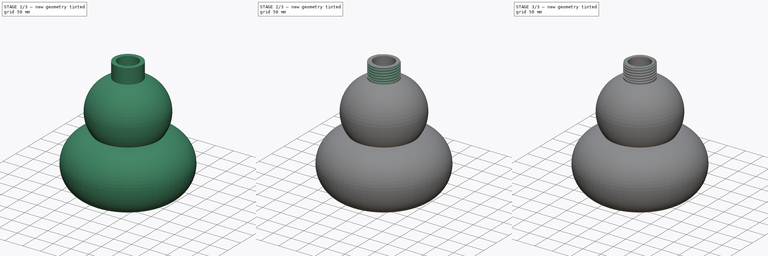
[diagram: build sequence overview — one tinted view per stage of 3, left to right]
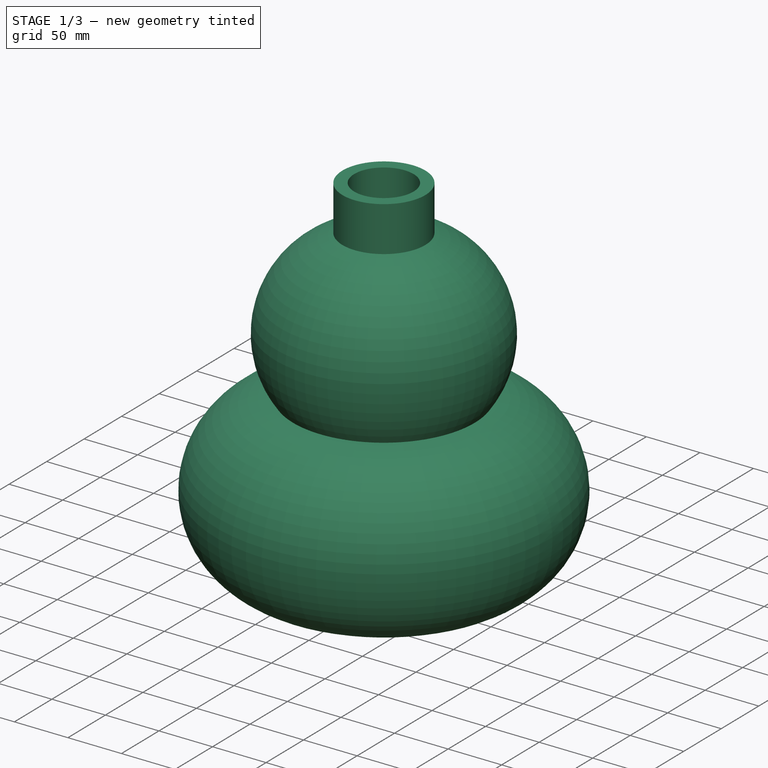
[diagram: stage 1 of 3 — iso view after this stage's code; geometry added in this stage tinted green]
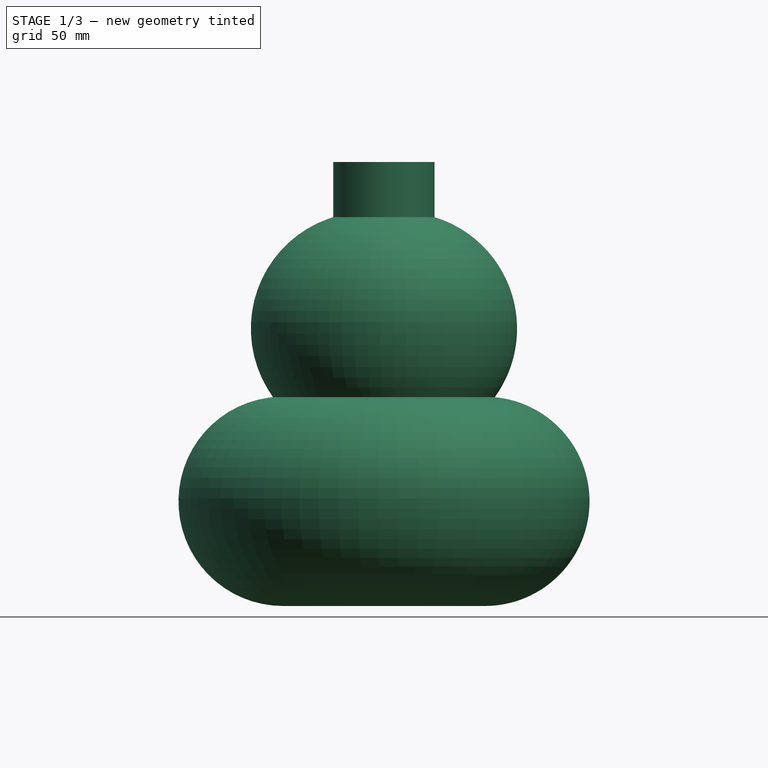
[diagram: stage 1 of 3 — front view after this stage's code; geometry added in this stage tinted green]
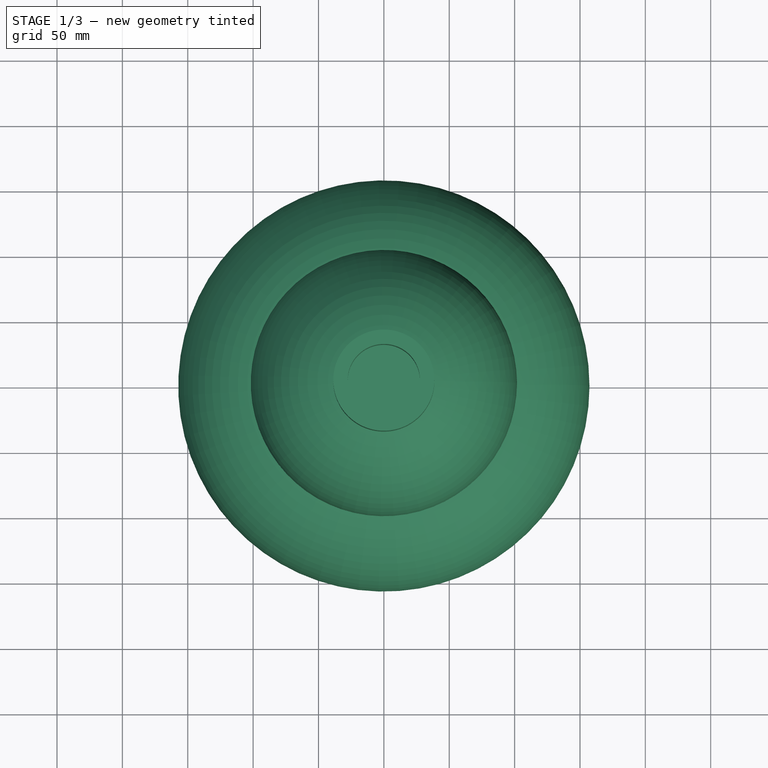
[diagram: stage 1 of 3 — top view after this stage's code; geometry added in this stage tinted green]
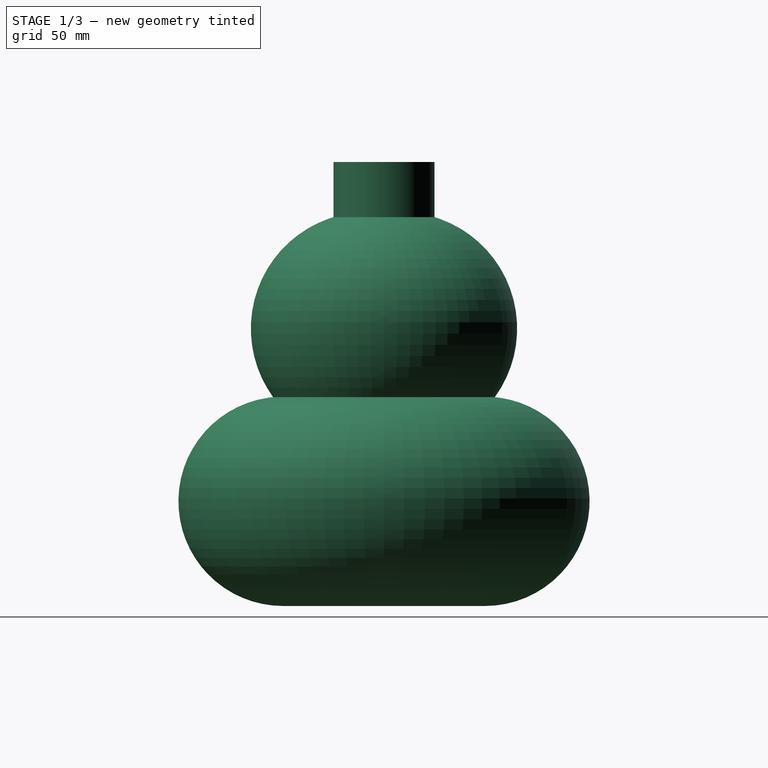
[diagram: stage 1 of 3 — right view after this stage's code; geometry added in this stage tinted green]
FCSTD DOCUMENT  (FreeCAD 0.21R33771 (Git))
Label: butilka
License: All rights reserved
LicenseURL: http://en.wikipedia.org/wiki/All_rights_reserved
objects: Sketcher::SketchObject×4, PartDesign::Fillet×2, PartDesign::Groove×2, PartDesign::Revolution×1, PartDesign::Thickness×1, PartDesign::SubtractiveHelix×1, PartDesign::Body×1
note: 19 computed .brp shape members not serialized (recipe doc carries the construction recipe); baked Part::Feature solids carry a one-line shape summary decoded from their .brp

FEATURE [Sketcher::SketchObject] Sketch
  FullyConstrained = false
  MapMode = 5
  Placement = pos=(0,0,0) rot=(1,0,0;1.5708rad)
  Support = -> [XZ_Plane]
  sketch-geometry (6):
    g0: LineSegment StartX=77.3145 StartY=-177.97 StartZ=0 EndX=0 EndY=-177.97 EndZ=0
    g1: ArcOfCircle CenterX=12.7362 CenterY=34.1959 CenterZ=0 NormalX=0 NormalY=0 NormalZ=1 AngleXU=0 Radius=89.1427 StartAngle=5.65463 EndAngle=7.55859
    g2: ArcOfCircle CenterX=77.2478 CenterY=-97.9134 CenterZ=0 NormalX=0 NormalY=0 NormalZ=1 AngleXU=0 Radius=80.0565 StartAngle=4.71322 EndAngle=7.75898
    g3: LineSegment StartX=38.6868 StartY=119.478 StartZ=0 EndX=38.6868 EndY=161.62 EndZ=0
    g4: LineSegment StartX=38.6868 StartY=161.62 StartZ=0 EndX=0 EndY=161.62 EndZ=0
    g5: LineSegment StartX=0 StartY=161.62 StartZ=0 EndX=0 EndY=-177.97 EndZ=0
  constraints (11):
    c: PointOnObject(g0,g-2)
    c: Horizontal(g0)
    c: Coincident(g2,g1)
    c: Vertical(g3)
    c: Coincident(g1,g3)
    c: Coincident(g4,g3)
    c: Horizontal(g4)
    c: Coincident(g2,g0)
    c: Coincident(g5,g4)
    c: Coincident(g5,g0)
    c: Vertical(g5)
FEATURE [PartDesign::Revolution] Revolution
  Angle = 360
  Axis = (0,2e-16,1)
  Base = (0,0,0)
  Placement = pos=(0,0,0) rot=(1,0,0;1.5708rad)
  Profile = -> Sketch
  ReferenceAxis = -> Sketch [V_Axis]
  Refine = true
  Reversed = true
FEATURE [PartDesign::Thickness] Thickness
  Base = -> Revolution [Face3]
  BaseFeature = -> Revolution
  Intersection = false
  Join = 0
  Mode = 0
  Refine = true
  Reversed = true
  SupportTransform = false
  Value = 11
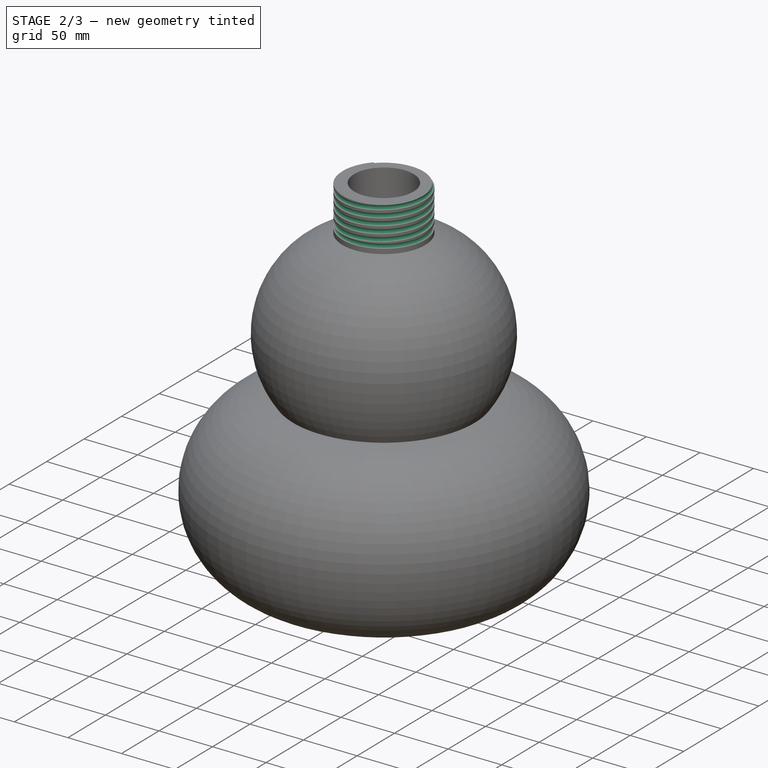
[diagram: stage 2 of 3 — iso view after this stage's code; geometry added in this stage tinted green]
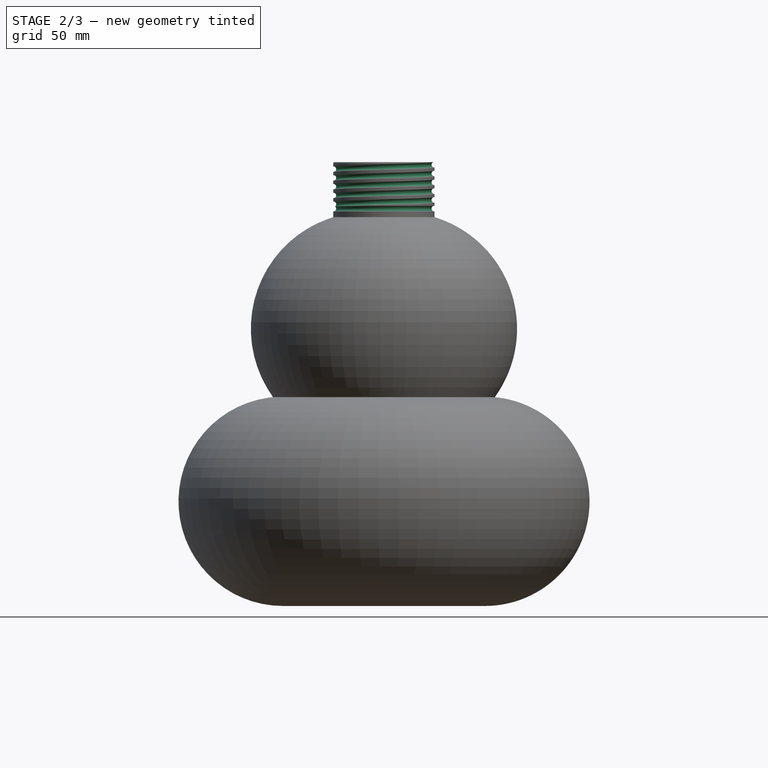
[diagram: stage 2 of 3 — front view after this stage's code; geometry added in this stage tinted green]
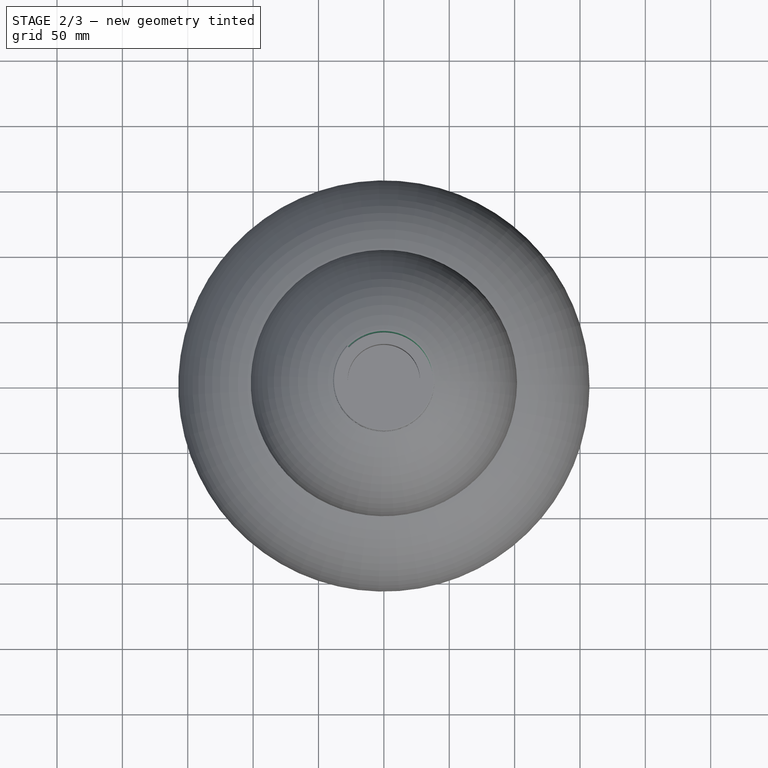
[diagram: stage 2 of 3 — top view after this stage's code; geometry added in this stage tinted green]
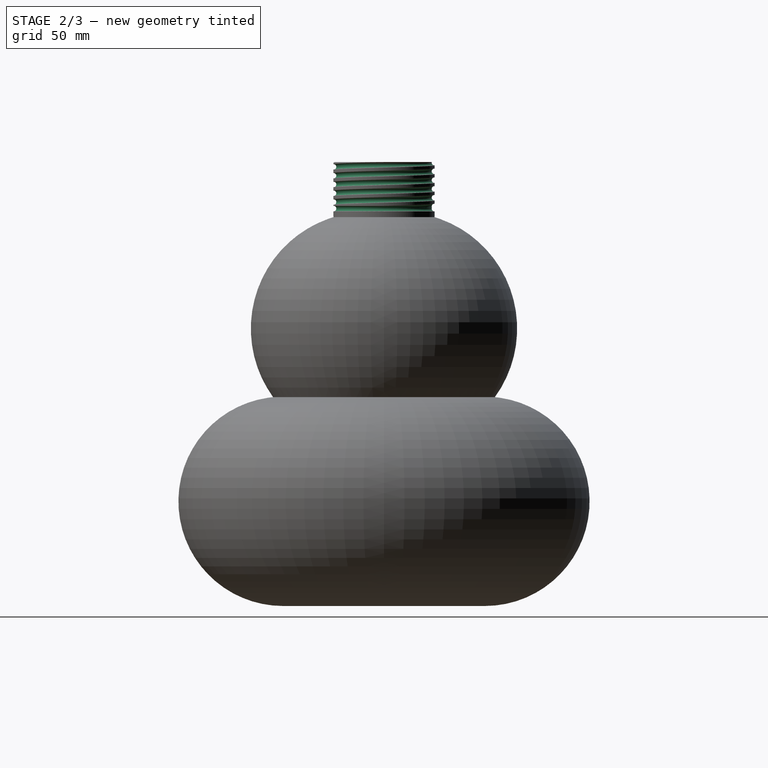
[diagram: stage 2 of 3 — right view after this stage's code; geometry added in this stage tinted green]
FEATURE [Sketcher::SketchObject] Sketch001
  FullyConstrained = false
  MapMode = 5
  Placement = pos=(0,0,0) rot=(1,0,0;1.5708rad)
  Support = -> [XZ_Plane]
  sketch-geometry (1):
    g0: Circle CenterX=38.6429 CenterY=125.959 CenterZ=0 NormalX=0 NormalY=0 NormalZ=1 AngleXU=0 Radius=2.16027
FEATURE [PartDesign::SubtractiveHelix] SubtractiveHelix
  Angle = 0
  Axis = (0,2e-16,1)
  Base = (0,0,0)
  BaseFeature = -> Thickness
  Growth = 0
  HasBeenEdited = true
  Height = 36.16
  LeftHanded = false
  Mode = 0
  Outside = false
  Pitch = 6.72119
  Profile = -> Sketch001
  ReferenceAxis = -> Sketch001 [V_Axis]
  Refine = true
  Turns = 5.38
FEATURE [PartDesign::Fillet] Fillet
  Base = -> SubtractiveHelix [Edge15]
  BaseFeature = -> SubtractiveHelix
  Radius = 1
  Refine = true
  SupportTransform = false
  UseAllEdges = false
FEATURE [Sketcher::SketchObject] Sketch002
  FullyConstrained = false
  MapMode = 5
  Placement = pos=(0,-1.24e-14,0) rot=(0,0.707107,0.707107;3.14159rad)
  Support = -> [Fillet]
  sketch-geometry (1):
    g0: Circle CenterX=-38.6097 CenterY=125.982 CenterZ=0 NormalX=0 NormalY=0 NormalZ=1 AngleXU=0 Radius=2.11722
FEATURE [PartDesign::Groove] Groove
  Angle = 360
  Axis = (1e-16,1e-16,1)
  Base = (0,0,0)
  BaseFeature = -> Fillet
  Profile = -> Sketch002
  ReferenceAxis = -> Z_Axis
  Refine = true
  Reversed = true
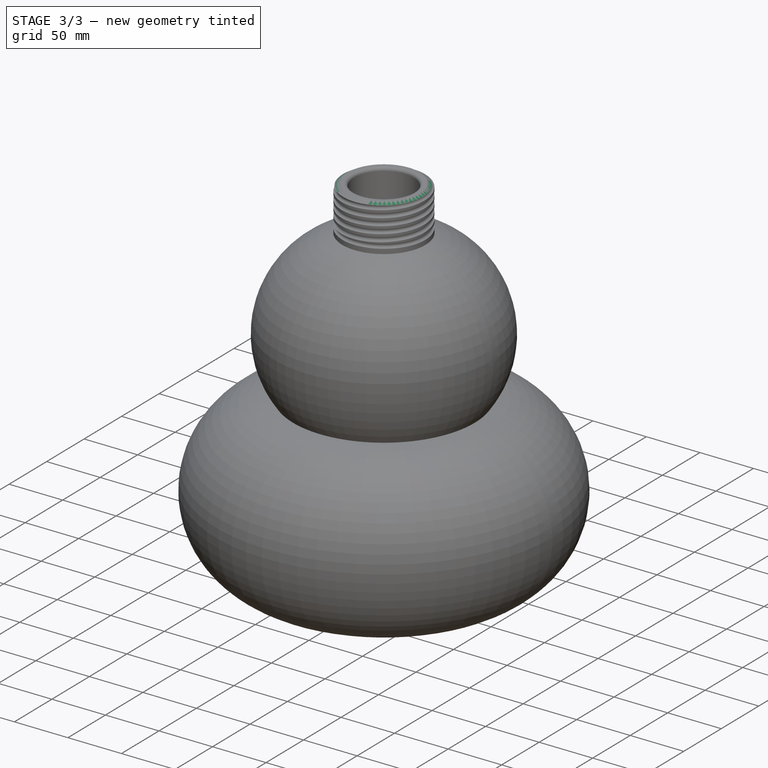
[diagram: stage 3 of 3 — iso view after this stage's code; geometry added in this stage tinted green]
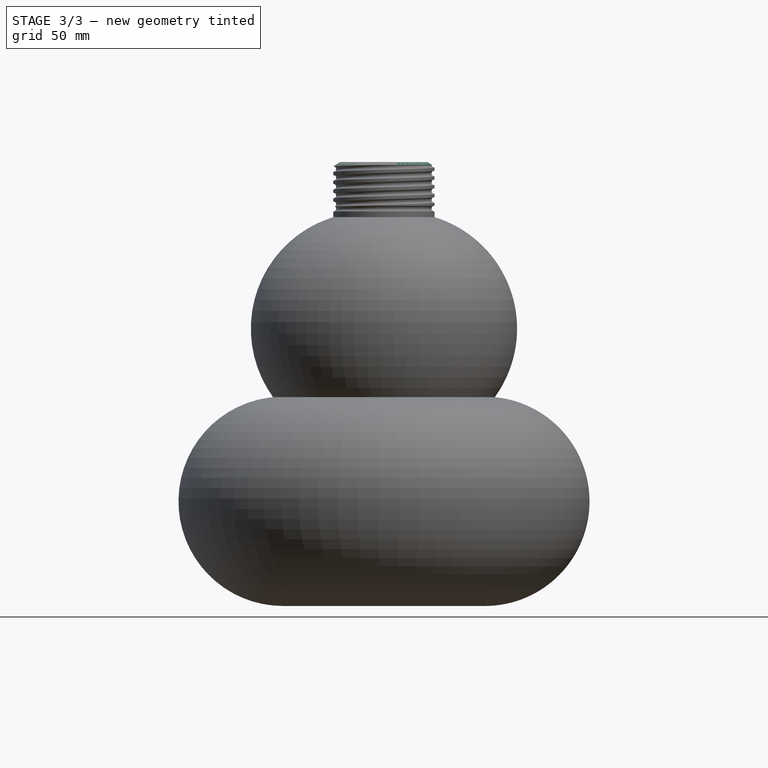
[diagram: stage 3 of 3 — front view after this stage's code; geometry added in this stage tinted green]
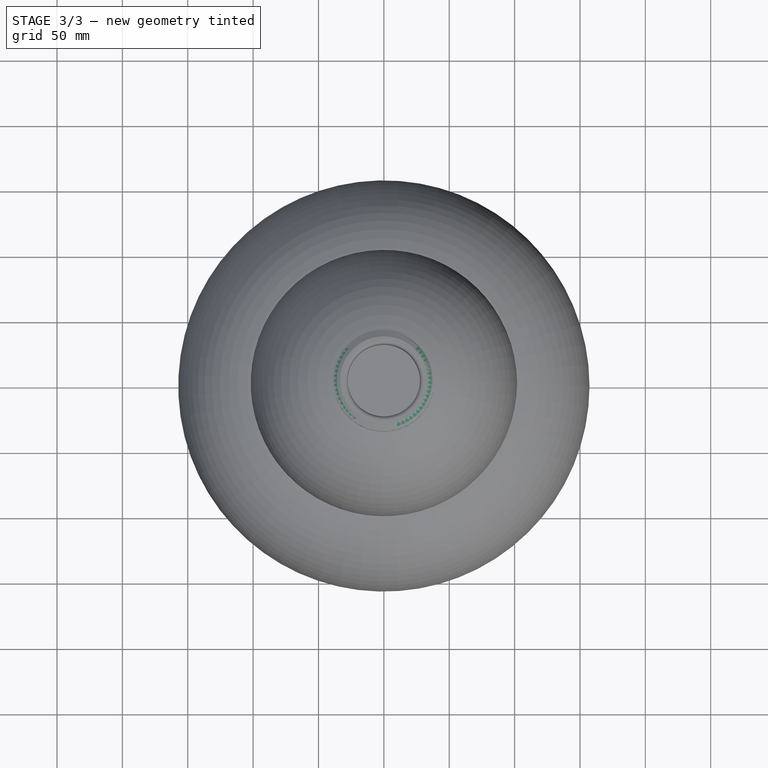
[diagram: stage 3 of 3 — top view after this stage's code; geometry added in this stage tinted green]
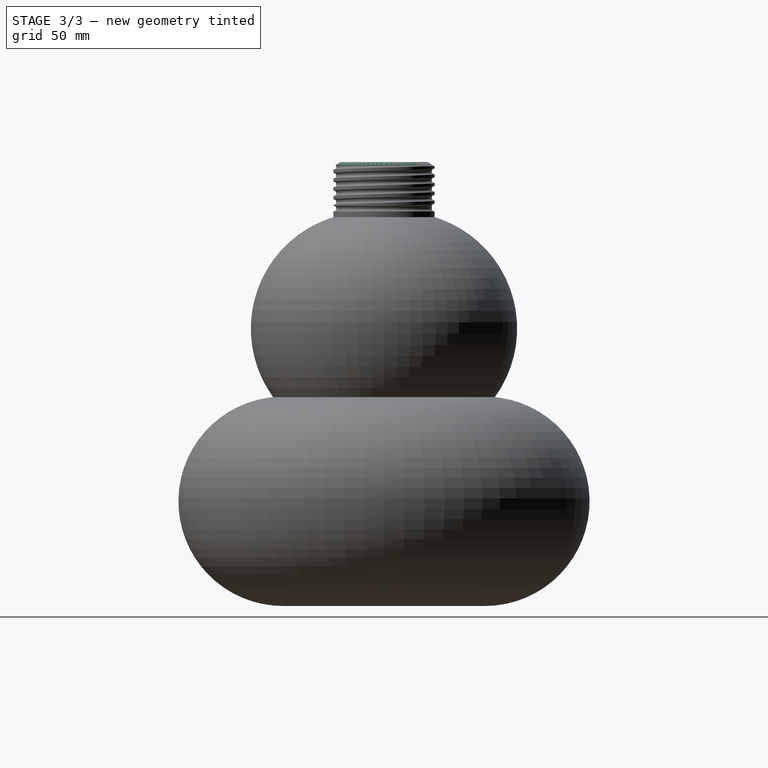
[diagram: stage 3 of 3 — right view after this stage's code; geometry added in this stage tinted green]
FEATURE [Sketcher::SketchObject] Sketch003
  FullyConstrained = false
  MapMode = 5
  Placement = pos=(0,0,0) rot=(1,0,0;1.5708rad)
  Support = -> [XZ_Plane]
  sketch-geometry (3):
    g0: LineSegment StartX=25.3195 StartY=166.703 StartZ=0 EndX=38.6539 EndY=158.379 EndZ=0
    g1: LineSegment StartX=38.6539 StartY=158.379 StartZ=0 EndX=48.4885 EndY=172.118 EndZ=0
    g2: LineSegment StartX=48.4885 StartY=172.118 StartZ=0 EndX=25.3195 EndY=166.703 EndZ=0
  constraints (3):
    c: Coincident(g1,g0)
    c: Coincident(g2,g1)
    c: Coincident(g2,g0)
FEATURE [PartDesign::Groove] Groove001
  Angle = 360
  Axis = (0,2e-16,1)
  Base = (0,0,0)
  BaseFeature = -> Groove
  Profile = -> Sketch003
  ReferenceAxis = -> Sketch003 [V_Axis]
  Refine = true
FEATURE [PartDesign::Fillet] Fillet001
  Base = -> Groove001 [Edge2]
  BaseFeature = -> Groove001
  Radius = 3
  Refine = true
  SupportTransform = false
  UseAllEdges = false
FEATURE [PartDesign::Body] Body
  Group = -> [Sketch,Revolution,Thickness,Sketch001,SubtractiveHelix,Fillet,Sketch002,Groove,Sketch003,Groove001,Fillet001]
  Origin = -> Origin
  Tip = -> Fillet001
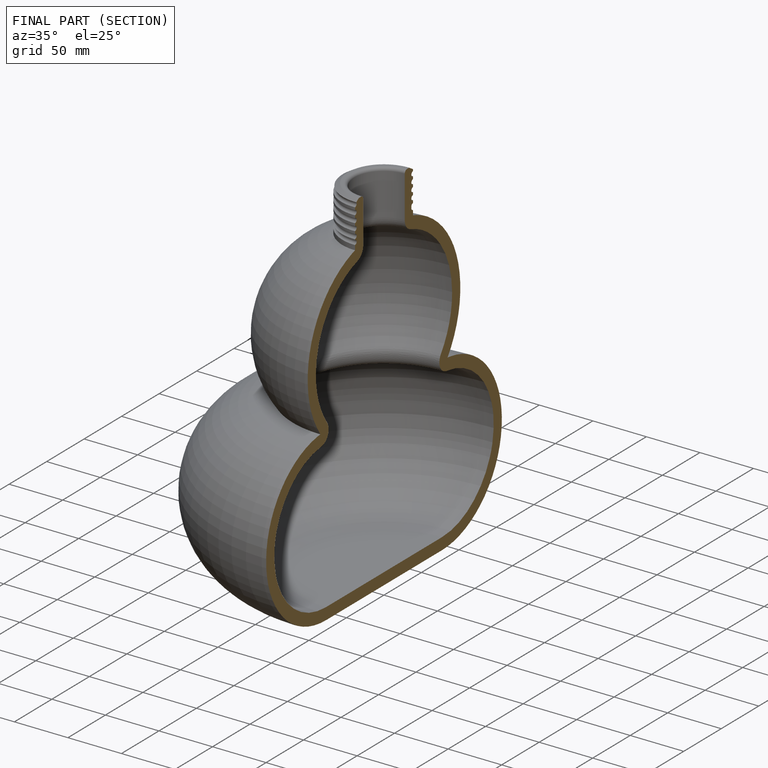
[diagram: finished part — half-section view (interior)]
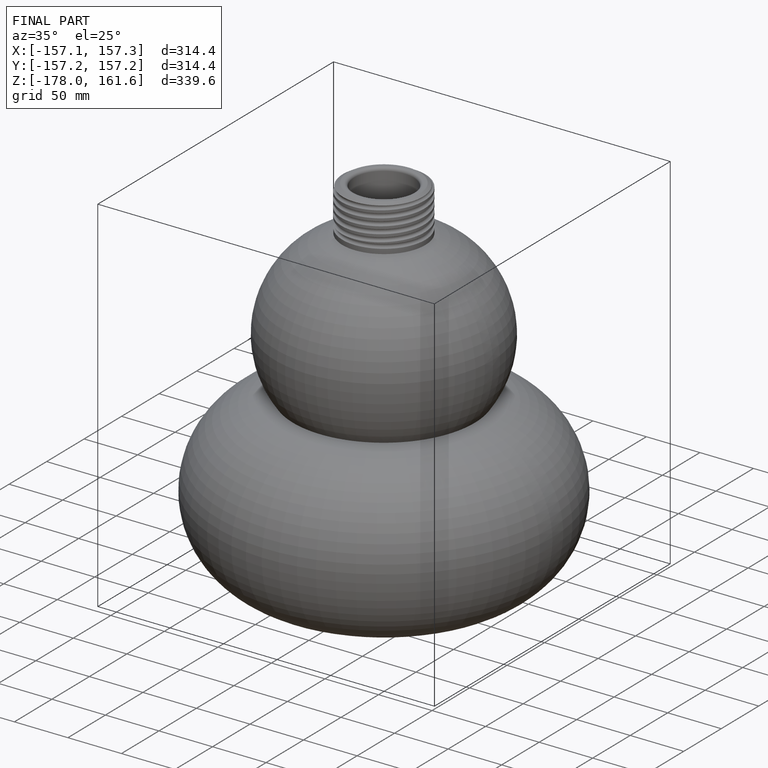
[diagram: finished part — iso view with bounding-box wireframe]
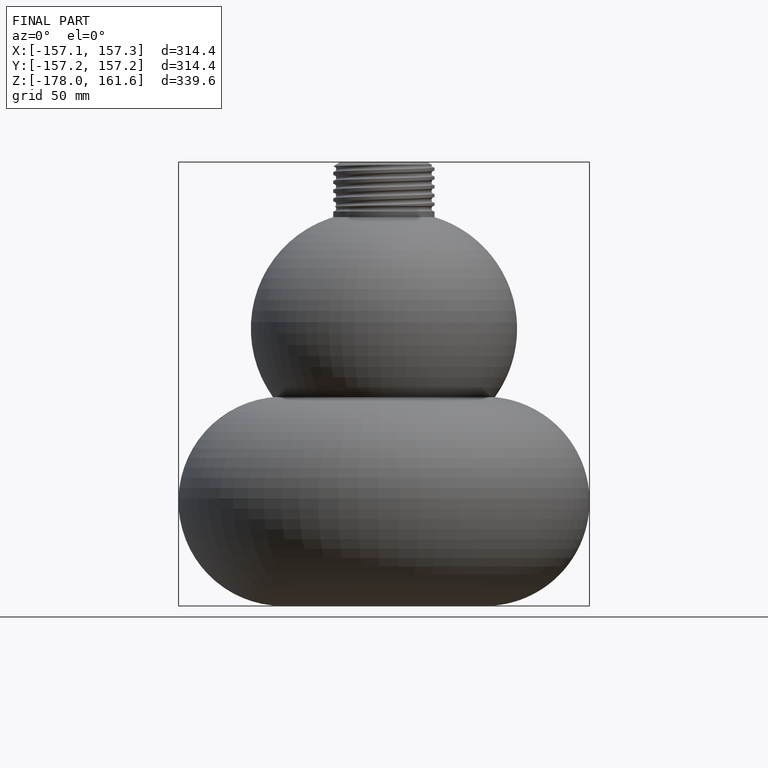
[diagram: finished part — front view with bounding-box wireframe]
